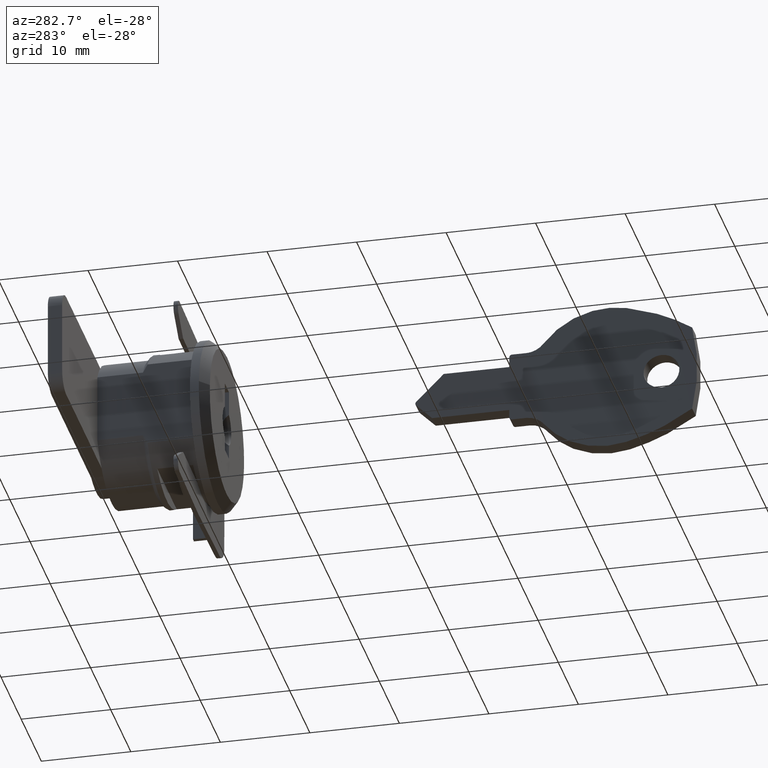
[diagram: clean part render]
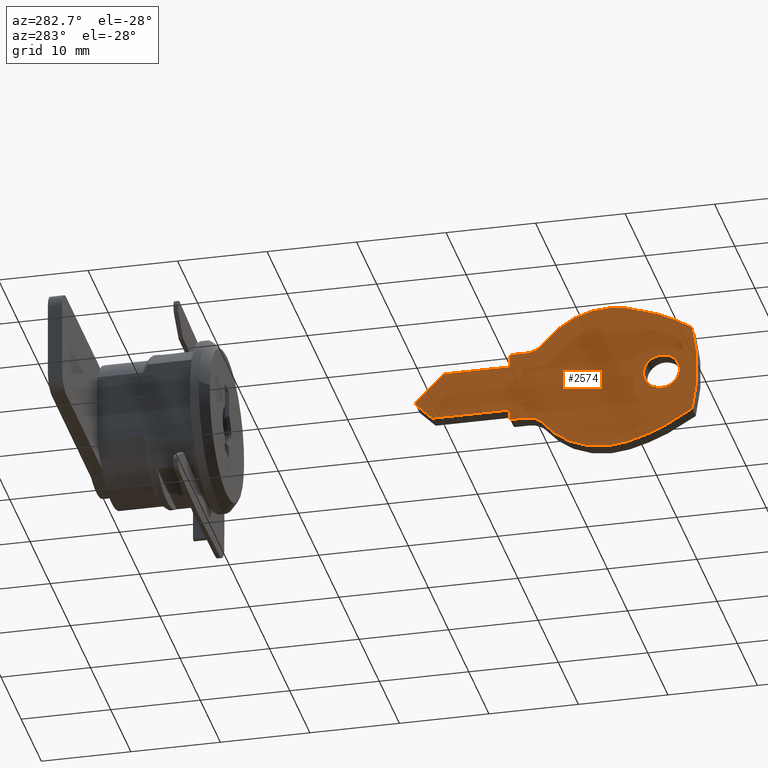
[diagram: same view with one face highlighted and labeled with its STEP entity id]
A machine part, auxiliary view. The second image highlights one B-rep face of the part: STEP entity #2574.
In plain terms, the highlighted face is a freeform B-spline surface patch.
Its self-contained STEP definition (entity closure, byte-faithful):
#2191=CARTESIAN_POINT('',(-50.747259605162498,0.900000000000012,2.600000000000000));
#2192=VERTEX_POINT('',#2191);
#2193=CARTESIAN_POINT('',(-52.741094272617097,0.900000000000012,0.756918191603745));
#2194=VERTEX_POINT('',#2193);
#2195=CARTESIAN_POINT('',(-50.747259605162498,0.900000000000012,2.600000000000000));
#2196=CARTESIAN_POINT('',(-52.596040588203493,0.900000000000012,2.600000000000000));
#2197=CARTESIAN_POINT('',(-52.741094272617104,0.900000000000012,0.756918191603745));
#2205=(BOUNDED_CURVE()B_SPLINE_CURVE(2,(#2195,#2196,#2197),.UNSPECIFIED.,.F.,.U.)B_SPLINE_CURVE_WITH_KNOTS((3,3),(0.0,0.236331300607308),.UNSPECIFIED.)CURVE()GEOMETRIC_REPRESENTATION_ITEM()RATIONAL_B_SPLINE_CURVE((1.0,0.723120658635024,0.969723356118685))REPRESENTATION_ITEM(''));
#2206=EDGE_CURVE('',#2192,#2194,#2205,.T.);
#2208=CARTESIAN_POINT('',(-48.753424937707891,0.900000000000012,0.443081808396255));
#2209=VERTEX_POINT('',#2208);
#2210=CARTESIAN_POINT('',(-48.753424937707891,0.900000000000012,0.443081808396255));
#2211=CARTESIAN_POINT('',(-48.747259605162512,0.900000000000012,0.521419785835920));
#2212=CARTESIAN_POINT('',(-48.747259605162498,0.900000000000012,0.600000000000000));
#2213=CARTESIAN_POINT('',(-48.747259605162505,0.900000000000012,2.600000000000001));
#2214=CARTESIAN_POINT('',(-50.747259605162498,0.900000000000012,2.600000000000000));
#2222=(BOUNDED_CURVE()B_SPLINE_CURVE(2,(#2210,#2211,#2212,#2213,#2214),.UNSPECIFIED.,.F.,.U.)B_SPLINE_CURVE_WITH_KNOTS((3,2,3),(0.736331300607308,0.750000000000000,1.0),.UNSPECIFIED.)CURVE()GEOMETRIC_REPRESENTATION_ITEM()RATIONAL_B_SPLINE_CURVE((0.969723356118685,0.983986122551524,1.0,0.707106781186548,1.0))REPRESENTATION_ITEM(''));
#2223=EDGE_CURVE('',#2209,#2192,#2222,.T.);
#2290=CARTESIAN_POINT('',(-50.747259605162498,0.900000000000012,-1.400000000000000));
#2291=VERTEX_POINT('',#2290);
#2292=CARTESIAN_POINT('',(-52.741094272617097,0.900000000000012,0.756918191603745));
#2293=CARTESIAN_POINT('',(-52.747259605162505,0.900000000000012,0.678580214164081));
#2294=CARTESIAN_POINT('',(-52.747259605162512,0.900000000000012,0.600000000000000));
#2295=CARTESIAN_POINT('',(-52.747259605162505,0.900000000000012,-1.400000000000000));
#2296=CARTESIAN_POINT('',(-50.747259605162498,0.900000000000012,-1.400000000000000));
#2304=(BOUNDED_CURVE()B_SPLINE_CURVE(2,(#2292,#2293,#2294,#2295,#2296),.UNSPECIFIED.,.F.,.U.)B_SPLINE_CURVE_WITH_KNOTS((3,2,3),(0.236331300607308,0.250000000000000,0.500000000000000),.UNSPECIFIED.)CURVE()GEOMETRIC_REPRESENTATION_ITEM()RATIONAL_B_SPLINE_CURVE((0.969723356118685,0.983986122551524,1.0,0.707106781186548,1.0))REPRESENTATION_ITEM(''));
#2305=EDGE_CURVE('',#2194,#2291,#2304,.T.);
#2339=CARTESIAN_POINT('',(-50.747259605162498,0.900000000000012,-1.400000000000000));
#2340=CARTESIAN_POINT('',(-48.898478622121502,0.900000000000012,-1.400000000000000));
#2341=CARTESIAN_POINT('',(-48.753424937707898,0.900000000000012,0.443081808396255));
#2349=(BOUNDED_CURVE()B_SPLINE_CURVE(2,(#2339,#2340,#2341),.UNSPECIFIED.,.F.,.U.)B_SPLINE_CURVE_WITH_KNOTS((3,3),(0.500000000000000,0.736331300607309),.UNSPECIFIED.)CURVE()GEOMETRIC_REPRESENTATION_ITEM()RATIONAL_B_SPLINE_CURVE((1.0,0.723120658635023,0.969723356118686))REPRESENTATION_ITEM(''));
#2350=EDGE_CURVE('',#2291,#2209,#2349,.T.);
#2355=CARTESIAN_POINT('',(-56.320686102992873,0.900000000000020,9.949071701215583));
#2356=CARTESIAN_POINT('',(-21.673833757702351,0.900000000000020,9.949071701215583));
#2357=CARTESIAN_POINT('',(-56.320686102992873,0.900000000000020,-8.749072138238761));
#2358=CARTESIAN_POINT('',(-21.673833757702351,0.900000000000020,-8.749072138238761));
#2359=B_SPLINE_SURFACE_WITH_KNOTS('',1,1,((#2355,#2357),(#2356,#2358)),.UNSPECIFIED.,.F.,.F.,.U.,(2,2),(2,2),(0.0,34.646852345290519),(0.0,18.698143839454350),.UNSPECIFIED.);
#2360=CARTESIAN_POINT('',(-37.606625119658702,0.900000000000012,5.578260861414620));
#2361=VERTEX_POINT('',#2360);
#2362=CARTESIAN_POINT('',(-46.834713811401492,0.900000000000012,8.854572602540600));
#2363=VERTEX_POINT('',#2362);
#2364=CARTESIAN_POINT('',(-37.606625119658702,0.900000000000012,5.578260861414620));
#2365=CARTESIAN_POINT('',(-41.158544601538956,0.900000000000012,10.208007038718991));
#2366=CARTESIAN_POINT('',(-46.834713811401492,0.900000000000012,8.854572602540600));
#2374=(BOUNDED_CURVE()B_SPLINE_CURVE(2,(#2364,#2365,#2366),.UNSPECIFIED.,.F.,.U.)CURVE()GEOMETRIC_REPRESENTATION_ITEM()QUASI_UNIFORM_CURVE()RATIONAL_B_SPLINE_CURVE((1.0,0.839069454552870,1.0))REPRESENTATION_ITEM(''));
#2375=EDGE_CURVE('',#2361,#2363,#2374,.T.);
#2376=ORIENTED_EDGE('',*,*,#2375,.F.);
#2377=CARTESIAN_POINT('',(-35.623115605162447,0.900000000000012,4.600000000000000));
#2378=VERTEX_POINT('',#2377);
#2379=CARTESIAN_POINT('',(-37.606625119658702,0.900000000000012,5.578260861414620));
#2380=CARTESIAN_POINT('',(-36.856108003566675,0.900000000000012,4.600000000000090));
#2381=CARTESIAN_POINT('',(-35.623115605162447,0.900000000000012,4.600000000000090));
#2389=(BOUNDED_CURVE()B_SPLINE_CURVE(2,(#2379,#2380,#2381),.UNSPECIFIED.,.F.,.U.)CURVE()GEOMETRIC_REPRESENTATION_ITEM()QUASI_UNIFORM_CURVE()RATIONAL_B_SPLINE_CURVE((1.0,0.896854407201690,1.0))REPRESENTATION_ITEM(''));
#2390=EDGE_CURVE('',#2361,#2378,#2389,.T.);
#2391=ORIENTED_EDGE('',*,*,#2390,.T.);
#2392=CARTESIAN_POINT('',(-34.047259605162452,0.900000000000012,4.599999999999910));
#2393=VERTEX_POINT('',#2392);
#2394=CARTESIAN_POINT('',(-34.047259605162452,0.900000000000012,4.599999999999910));
#2395=CARTESIAN_POINT('',(-35.623115605162447,0.900000000000012,4.600000000000000));
#2396=QUASI_UNIFORM_CURVE('',1,(#2394,#2395),.UNSPECIFIED.,.F.,.U.);
#2397=EDGE_CURVE('',#2393,#2378,#2396,.T.);
#2398=ORIENTED_EDGE('',*,*,#2397,.F.);
#2399=CARTESIAN_POINT('',(-33.747259605162448,0.900000000000012,4.299999999999910));
#2400=VERTEX_POINT('',#2399);
#2401=CARTESIAN_POINT('',(-33.747259605162441,0.900000000000012,4.299999999999910));
#2402=CARTESIAN_POINT('',(-33.747259605162441,0.900000000000012,4.599999999999910));
#2403=CARTESIAN_POINT('',(-34.047259605162452,0.900000000000012,4.599999999999910));
#2411=(BOUNDED_CURVE()B_SPLINE_CURVE(2,(#2401,#2402,#2403),.UNSPECIFIED.,.F.,.U.)CURVE()GEOMETRIC_REPRESENTATION_ITEM()QUASI_UNIFORM_CURVE()RATIONAL_B_SPLINE_CURVE((1.0,0.707106781186547,1.0))REPRESENTATION_ITEM(''));
#2412=EDGE_CURVE('',#2400,#2393,#2411,.T.);
#2413=ORIENTED_EDGE('',*,*,#2412,.F.);
#2414=CARTESIAN_POINT('',(-33.747259605162448,0.900000000000012,3.100000000000090));
#2415=VERTEX_POINT('',#2414);
#2416=CARTESIAN_POINT('',(-33.747259605162448,0.900000000000012,3.100000000000090));
#2417=CARTESIAN_POINT('',(-33.747259605162448,0.900000000000012,4.299999999999910));
#2418=QUASI_UNIFORM_CURVE('',1,(#2416,#2417),.UNSPECIFIED.,.F.,.U.);
#2419=EDGE_CURVE('',#2415,#2400,#2418,.T.);
#2420=ORIENTED_EDGE('',*,*,#2419,.F.);
#2421=CARTESIAN_POINT('',(-26.422995605162448,0.900000000000012,3.100000000000090));
#2422=VERTEX_POINT('',#2421);
#2423=CARTESIAN_POINT('',(-26.422995605162448,0.900000000000012,3.100000000000090));
#2424=CARTESIAN_POINT('',(-33.747259605162448,0.900000000000012,3.100000000000090));
#2425=QUASI_UNIFORM_CURVE('',1,(#2423,#2424),.UNSPECIFIED.,.F.,.U.);
#2426=EDGE_CURVE('',#2422,#2415,#2425,.T.);
#2427=ORIENTED_EDGE('',*,*,#2426,.F.);
#2428=CARTESIAN_POINT('',(-23.335127570806499,0.900000000000012,0.012132034355873));
#2429=VERTEX_POINT('',#2428);
#2430=CARTESIAN_POINT('',(-23.335127570806499,0.900000000000012,0.012132034355873));
#2431=CARTESIAN_POINT('',(-26.422995605162448,0.900000000000012,3.100000000000090));
#2432=QUASI_UNIFORM_CURVE('',1,(#2430,#2431),.UNSPECIFIED.,.F.,.U.);
#2433=EDGE_CURVE('',#2429,#2422,#2432,.T.);
#2434=ORIENTED_EDGE('',*,*,#2433,.F.);
#2435=CARTESIAN_POINT('',(-23.335127605162452,0.900000000000012,-0.412132000000000));
#2436=VERTEX_POINT('',#2435);
#2437=CARTESIAN_POINT('',(-23.335127605162452,0.900000000000012,-0.412132000000000));
#2438=CARTESIAN_POINT('',(-23.122995536450563,0.900000000000012,-0.200000000000039));
#2439=CARTESIAN_POINT('',(-23.335127570806488,0.900000000000012,0.012132034355881));
#2447=(BOUNDED_CURVE()B_SPLINE_CURVE(2,(#2437,#2438,#2439),.UNSPECIFIED.,.F.,.U.)CURVE()GEOMETRIC_REPRESENTATION_ITEM()QUASI_UNIFORM_CURVE()RATIONAL_B_SPLINE_CURVE((1.0,0.707106781186608,1.0))REPRESENTATION_ITEM(''));
#2448=EDGE_CURVE('',#2436,#2429,#2447,.T.);
#2449=ORIENTED_EDGE('',*,*,#2448,.F.);
#2450=CARTESIAN_POINT('',(-25.122995605162451,0.900000000000012,-2.200000000000090));
#2451=VERTEX_POINT('',#2450);
#2452=CARTESIAN_POINT('',(-25.122995605162451,0.900000000000012,-2.200000000000090));
#2453=CARTESIAN_POINT('',(-23.335127605162452,0.900000000000012,-0.412132000000000));
#2454=QUASI_UNIFORM_CURVE('',1,(#2452,#2453),.UNSPECIFIED.,.F.,.U.);
#2455=EDGE_CURVE('',#2451,#2436,#2454,.T.);
#2456=ORIENTED_EDGE('',*,*,#2455,.F.);
#2457=CARTESIAN_POINT('',(-33.747259605162448,0.900000000000012,-2.200000000000090));
#2458=VERTEX_POINT('',#2457);
#2459=CARTESIAN_POINT('',(-33.747259605162448,0.900000000000012,-2.200000000000090));
#2460=CARTESIAN_POINT('',(-25.122995605162451,0.900000000000012,-2.200000000000090));
#2461=QUASI_UNIFORM_CURVE('',1,(#2459,#2460),.UNSPECIFIED.,.F.,.U.);
#2462=EDGE_CURVE('',#2458,#2451,#2461,.T.);
#2463=ORIENTED_EDGE('',*,*,#2462,.F.);
#2464=CARTESIAN_POINT('',(-33.747259605162448,0.900000000000012,-3.100000000000100));
#2465=VERTEX_POINT('',#2464);
#2466=CARTESIAN_POINT('',(-33.747259605162448,0.900000000000012,-3.100000000000100));
#2467=CARTESIAN_POINT('',(-33.747259605162448,0.900000000000012,-2.200000000000090));
#2468=QUASI_UNIFORM_CURVE('',1,(#2466,#2467),.UNSPECIFIED.,.F.,.U.);
#2469=EDGE_CURVE('',#2465,#2458,#2468,.T.);
#2470=ORIENTED_EDGE('',*,*,#2469,.F.);
#2471=CARTESIAN_POINT('',(-34.047259605162452,0.900000000000012,-3.399999999999910));
#2472=VERTEX_POINT('',#2471);
#2473=CARTESIAN_POINT('',(-34.047259605162452,0.900000000000012,-3.399999999999910));
#2474=CARTESIAN_POINT('',(-33.747259605162441,0.900000000000012,-3.400000000000100));
#2475=CARTESIAN_POINT('',(-33.747259605162441,0.900000000000012,-3.100000000000100));
#2483=(BOUNDED_CURVE()B_SPLINE_CURVE(2,(#2473,#2474,#2475),.UNSPECIFIED.,.F.,.U.)CURVE()GEOMETRIC_REPRESENTATION_ITEM()QUASI_UNIFORM_CURVE()RATIONAL_B_SPLINE_CURVE((1.0,0.707106781186547,1.0))REPRESENTATION_ITEM(''));
#2484=EDGE_CURVE('',#2472,#2465,#2483,.T.);
#2485=ORIENTED_EDGE('',*,*,#2484,.F.);
#2486=CARTESIAN_POINT('',(-35.623115605162447,0.900000000000012,-3.400000000000000));
#2487=VERTEX_POINT('',#2486);
#2488=CARTESIAN_POINT('',(-35.623115605162447,0.900000000000012,-3.400000000000000));
#2489=CARTESIAN_POINT('',(-34.047259605162452,0.900000000000012,-3.399999999999910));
#2490=QUASI_UNIFORM_CURVE('',1,(#2488,#2489),.UNSPECIFIED.,.F.,.U.);
#2491=EDGE_CURVE('',#2487,#2472,#2490,.T.);
#2492=ORIENTED_EDGE('',*,*,#2491,.F.);
#2493=CARTESIAN_POINT('',(-37.606625352975954,0.900000000000012,-4.378260898907620));
#2494=VERTEX_POINT('',#2493);
#2495=CARTESIAN_POINT('',(-35.623115605162447,0.900000000000012,-3.400000000000000));
#2496=CARTESIAN_POINT('',(-36.856108110340344,0.900000000000012,-3.400000000000000));
#2497=CARTESIAN_POINT('',(-37.606625352975954,0.900000000000012,-4.378260898907620));
#2505=(BOUNDED_CURVE()B_SPLINE_CURVE(2,(#2495,#2496,#2497),.UNSPECIFIED.,.F.,.U.)CURVE()GEOMETRIC_REPRESENTATION_ITEM()QUASI_UNIFORM_CURVE()RATIONAL_B_SPLINE_CURVE((1.0,0.896854392006349,1.0))REPRESENTATION_ITEM(''));
#2506=EDGE_CURVE('',#2487,#2494,#2505,.T.);
#2507=ORIENTED_EDGE('',*,*,#2506,.T.);
#2508=CARTESIAN_POINT('',(-46.834713811401599,0.900000000000012,-7.654572602540380));
#2509=VERTEX_POINT('',#2508);
#2510=CARTESIAN_POINT('',(-46.834713811401599,0.900000000000012,-7.654572602540380));
#2511=CARTESIAN_POINT('',(-41.158544720199117,0.900000000000012,-9.008007010425466));
#2512=CARTESIAN_POINT('',(-37.606625352975961,0.900000000000012,-4.378260898907617));
#2520=(BOUNDED_CURVE()B_SPLINE_CURVE(2,(#2510,#2511,#2512),.UNSPECIFIED.,.F.,.U.)CURVE()GEOMETRIC_REPRESENTATION_ITEM()QUASI_UNIFORM_CURVE()RATIONAL_B_SPLINE_CURVE((1.0,0.839069459744259,1.0))REPRESENTATION_ITEM(''));
#2521=EDGE_CURVE('',#2509,#2494,#2520,.T.);
#2522=ORIENTED_EDGE('',*,*,#2521,.F.);
#2523=CARTESIAN_POINT('',(-54.171544872198403,0.900000000000012,-4.400000079666495));
#2524=VERTEX_POINT('',#2523);
#2525=CARTESIAN_POINT('',(-54.171544872198403,0.900000000000012,-4.400000079666495));
#2526=CARTESIAN_POINT('',(-50.805037507901616,0.900000000000012,-6.707882393271475));
#2527=CARTESIAN_POINT('',(-46.834713811401599,0.900000000000012,-7.654572602540382));
#2535=(BOUNDED_CURVE()B_SPLINE_CURVE(2,(#2525,#2526,#2527),.UNSPECIFIED.,.F.,.U.)CURVE()GEOMETRIC_REPRESENTATION_ITEM()QUASI_UNIFORM_CURVE()RATIONAL_B_SPLINE_CURVE((1.0,0.983221499950229,1.0))REPRESENTATION_ITEM(''));
#2536=EDGE_CURVE('',#2524,#2509,#2535,.T.);
#2537=ORIENTED_EDGE('',*,*,#2536,.F.);
#2538=CARTESIAN_POINT('',(-54.171545150485400,0.900000000000012,5.600000261383149));
#2539=VERTEX_POINT('',#2538);
#2540=CARTESIAN_POINT('',(-54.171545150485400,0.900000000000012,5.600000261383149));
#2541=CARTESIAN_POINT('',(-55.338444994045474,0.900000000000012,0.600000058385015));
#2542=CARTESIAN_POINT('',(-54.171544872198432,0.900000000000012,-4.400000079666500));
#2550=(BOUNDED_CURVE()B_SPLINE_CURVE(2,(#2540,#2541,#2542),.UNSPECIFIED.,.F.,.U.)CURVE()GEOMETRIC_REPRESENTATION_ITEM()QUASI_UNIFORM_CURVE()RATIONAL_B_SPLINE_CURVE((1.0,0.973831147914268,1.0))REPRESENTATION_ITEM(''));
#2551=EDGE_CURVE('',#2539,#2524,#2550,.T.);
#2552=ORIENTED_EDGE('',*,*,#2551,.F.);
#2553=CARTESIAN_POINT('',(-46.834713811401500,0.900000000000012,8.854572602540605));
#2554=CARTESIAN_POINT('',(-50.805037571686150,0.900000000000012,7.907882378062812));
#2555=CARTESIAN_POINT('',(-54.171545150485400,0.900000000000012,5.600000261383163));
#2563=(BOUNDED_CURVE()B_SPLINE_CURVE(2,(#2553,#2554,#2555),.UNSPECIFIED.,.F.,.U.)CURVE()GEOMETRIC_REPRESENTATION_ITEM()QUASI_UNIFORM_CURVE()RATIONAL_B_SPLINE_CURVE((1.0,0.983221499424616,1.0))REPRESENTATION_ITEM(''));
#2564=EDGE_CURVE('',#2363,#2539,#2563,.T.);
#2565=ORIENTED_EDGE('',*,*,#2564,.F.);
#2566=EDGE_LOOP('',(#2376,#2391,#2398,#2413,#2420,#2427,#2434,#2449,#2456,#2463,#2470,#2485,#2492,#2507,#2522,#2537,#2552,#2565));
#2567=FACE_OUTER_BOUND('',#2566,.T.);
#2568=ORIENTED_EDGE('',*,*,#2350,.T.);
#2569=ORIENTED_EDGE('',*,*,#2223,.T.);
#2570=ORIENTED_EDGE('',*,*,#2206,.T.);
#2571=ORIENTED_EDGE('',*,*,#2305,.T.);
#2572=EDGE_LOOP('',(#2568,#2569,#2570,#2571));
#2573=FACE_BOUND('',#2572,.T.);
#2574=ADVANCED_FACE('',(#2567,#2573),#2359,.T.);